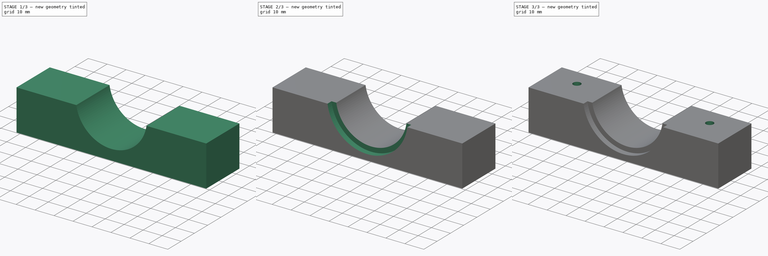
[diagram: build sequence overview — one tinted view per stage of 3, left to right]
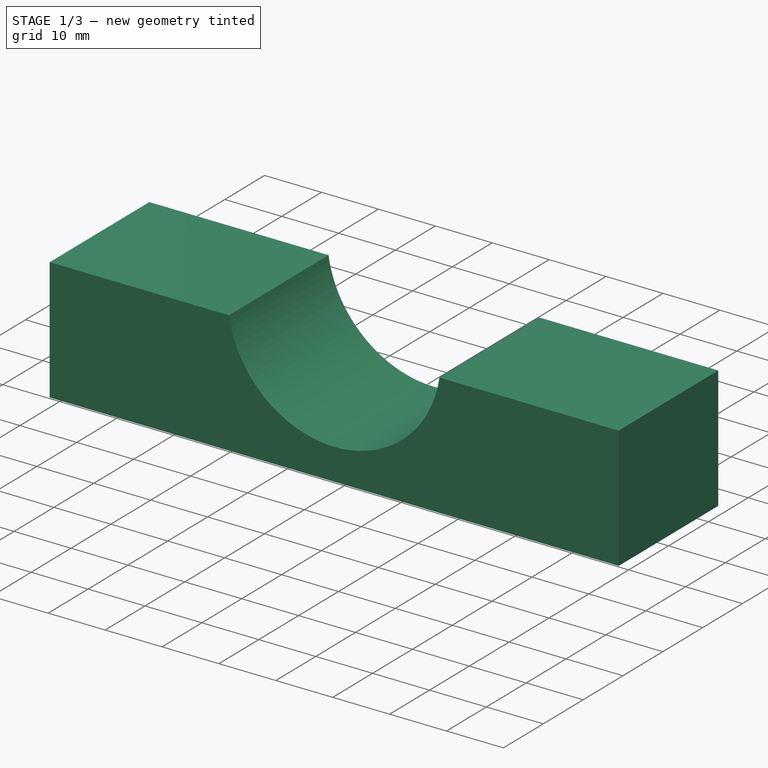
[diagram: stage 1 of 3 — iso view after this stage's code; geometry added in this stage tinted green]
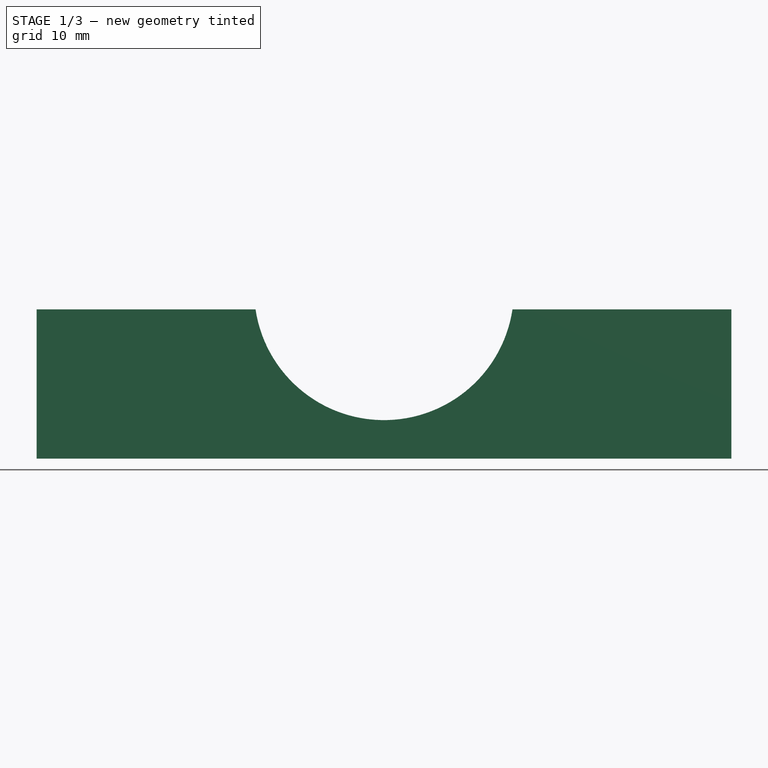
[diagram: stage 1 of 3 — front view after this stage's code; geometry added in this stage tinted green]
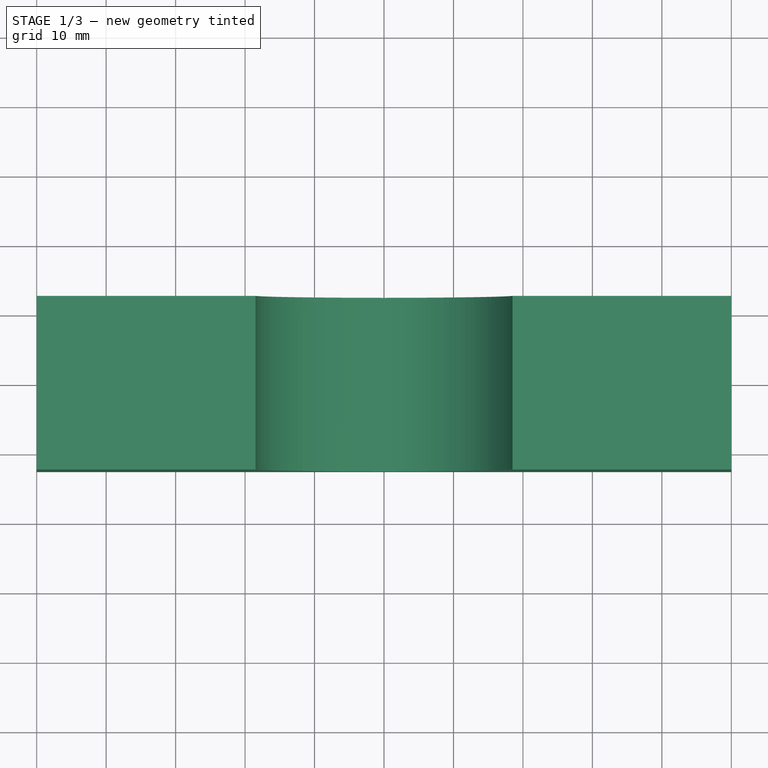
[diagram: stage 1 of 3 — top view after this stage's code; geometry added in this stage tinted green]
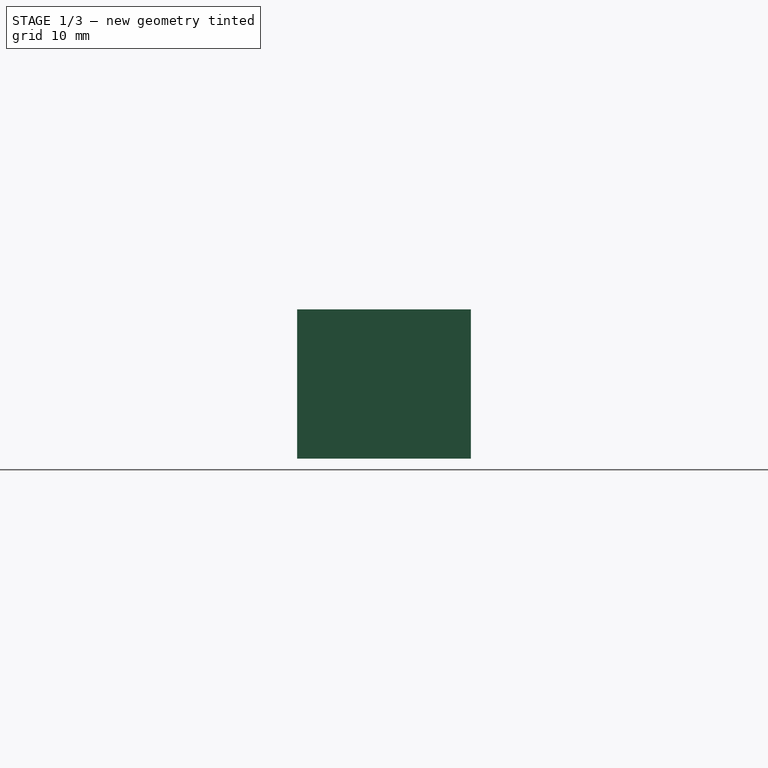
[diagram: stage 1 of 3 — right view after this stage's code; geometry added in this stage tinted green]
FCSTD DOCUMENT  (FreeCAD 0.16R)
Label: motor_holder
License: All rights reserved
LicenseURL: http://en.wikipedia.org/wiki/All_rights_reserved
objects: Sketcher::SketchObject×5, PartDesign::Pocket×4, PartDesign::Pad×1
note: 15 computed .brp shape members not serialized (recipe doc carries the construction recipe); baked Part::Feature solids carry a one-line shape summary decoded from their .brp

FEATURE [Sketcher::SketchObject] Sketch
  sketch-geometry (4):
    g0: LineSegment StartX=-50 StartY=12.5 StartZ=0 EndX=50 EndY=12.5 EndZ=0
    g1: LineSegment StartX=50 StartY=12.5 StartZ=0 EndX=50 EndY=-12.5 EndZ=0
    g2: LineSegment StartX=50 StartY=-12.5 StartZ=0 EndX=-50 EndY=-12.5 EndZ=0
    g3: LineSegment StartX=-50 StartY=-12.5 StartZ=0 EndX=-50 EndY=12.5 EndZ=0
  constraints (12):
    c: Coincident(g0,g1)
    c: Coincident(g1,g2)
    c: Coincident(g2,g3)
    c: Coincident(g3,g0)
    c: Horizontal(g0)
    c: Horizontal(g2)
    c: Vertical(g1)
    c: Vertical(g3)
    c: Symmetric(g0,g0,g-2)
    c: Symmetric(g0,g2,g-1)
    c: DistanceX(g0,g0) = 100
    c: DistanceY(g3,g3) = 25
FEATURE [PartDesign::Pad] Pad
  Length = 21.5
  Length2 = 100
  Sketch = -> Sketch
  Type = 0
FEATURE [Sketcher::SketchObject] Sketch001
  ExternalGeometry = -> [Pad]
  Placement = pos=(0,-12.5,0) rot=(1,0,0;1.5708rad)
  Support = -> Pad [Face3]
  sketch-geometry (1):
    g0: Circle CenterX=0 CenterY=24.25 CenterZ=0 NormalX=0 NormalY=0 NormalZ=1 Radius=18.7
  constraints (3):
    c: Radius(g0) = 18.7
    c: PointOnObject(g0,g-2)
    c: DistanceY(g0,g-3) = -2.75
FEATURE [PartDesign::Pocket] Pocket
  Length = 5
  Sketch = -> Sketch001
  Type = 1
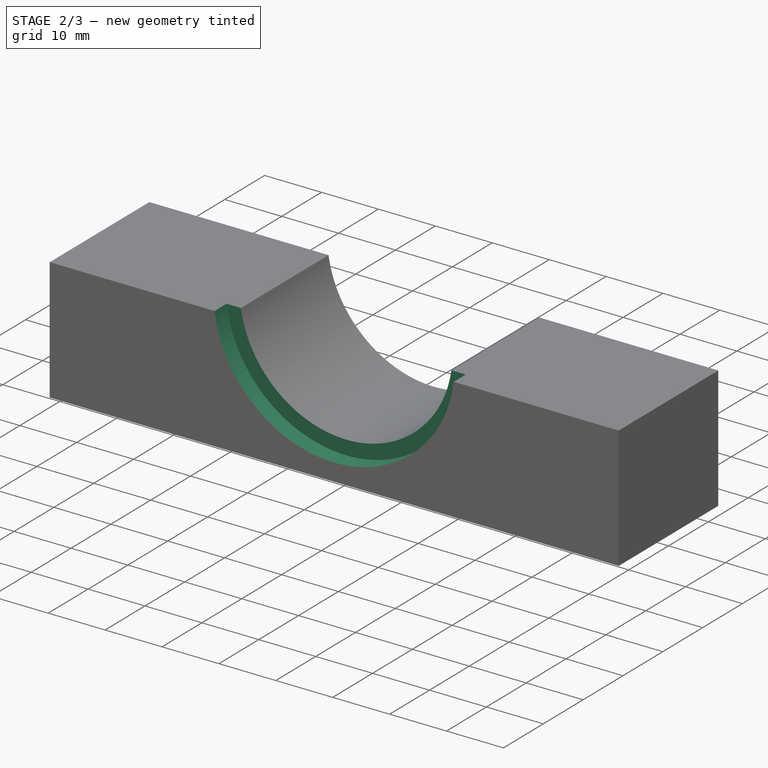
[diagram: stage 2 of 3 — iso view after this stage's code; geometry added in this stage tinted green]
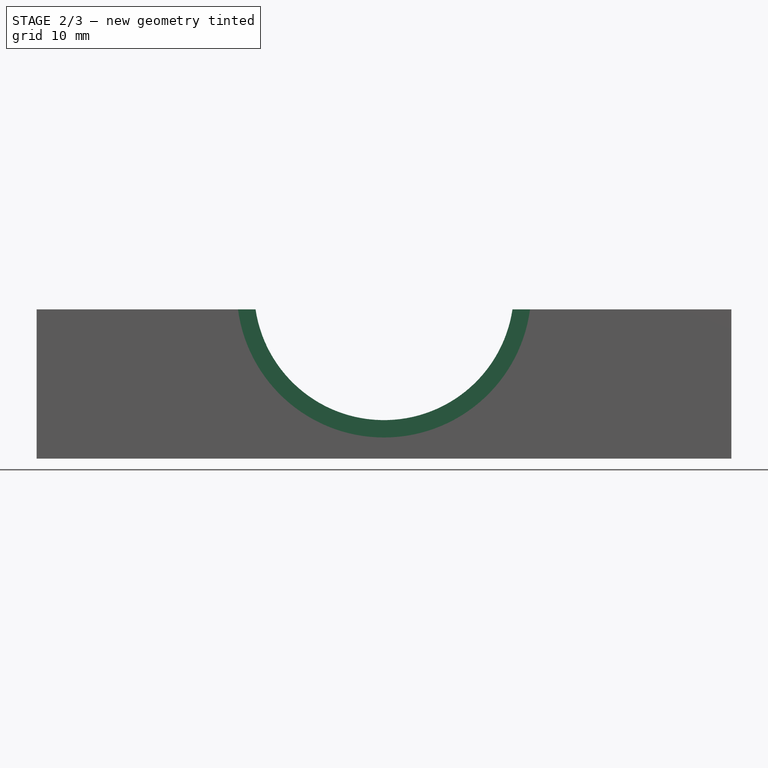
[diagram: stage 2 of 3 — front view after this stage's code; geometry added in this stage tinted green]
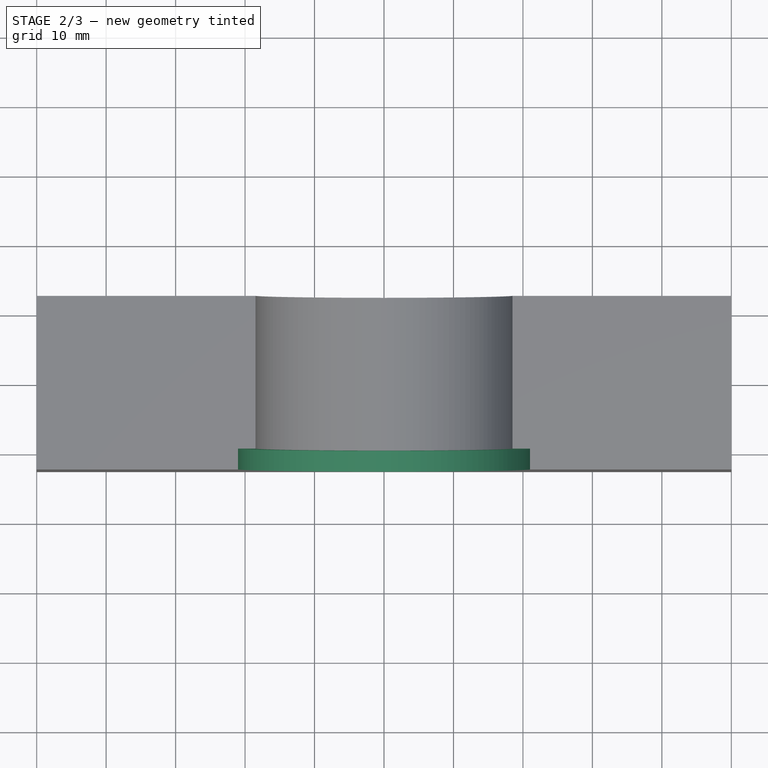
[diagram: stage 2 of 3 — top view after this stage's code; geometry added in this stage tinted green]
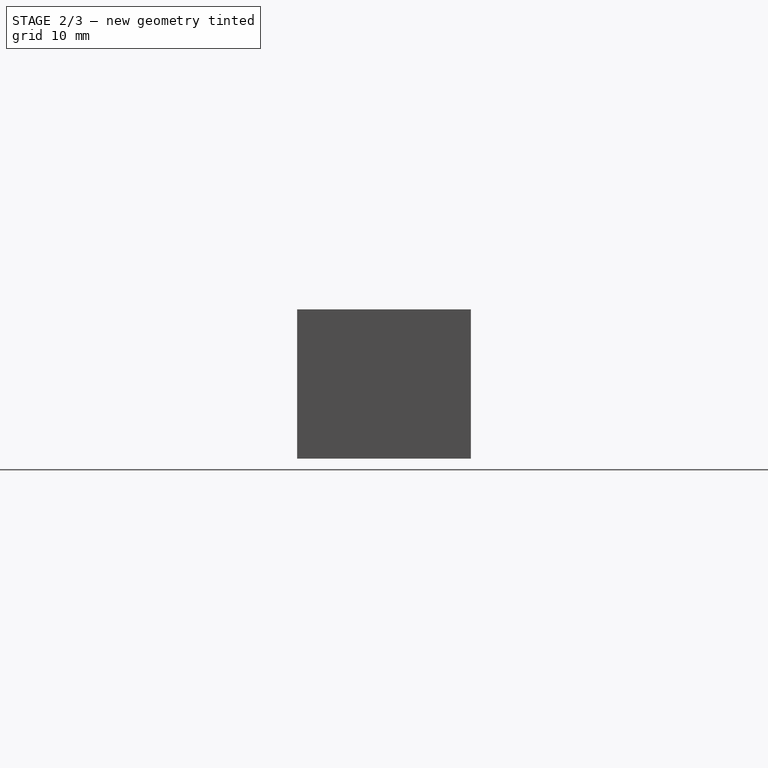
[diagram: stage 2 of 3 — right view after this stage's code; geometry added in this stage tinted green]
FEATURE [Sketcher::SketchObject] Sketch002
  ExternalGeometry = -> [Pocket]
  Placement = pos=(0,-12.5,0) rot=(1,0,0;1.5708rad)
  Support = -> Pocket [Face8]
  sketch-geometry (1):
    g0: Circle CenterX=0 CenterY=24.25 CenterZ=0 NormalX=0 NormalY=0 NormalZ=1 Radius=21.2
  constraints (2):
    c: Radius(g0) = 21.2
    c: DistanceY(g0,g-3) = -2.75
FEATURE [PartDesign::Pocket] Pocket001
  Length = 3
  Sketch = -> Sketch002
  Type = 0
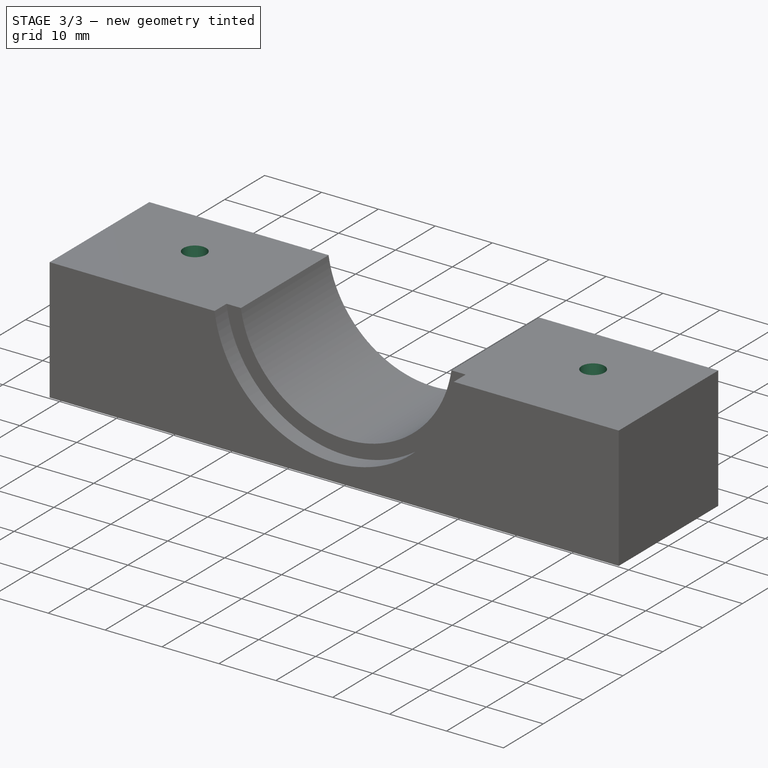
[diagram: stage 3 of 3 — iso view after this stage's code; geometry added in this stage tinted green]
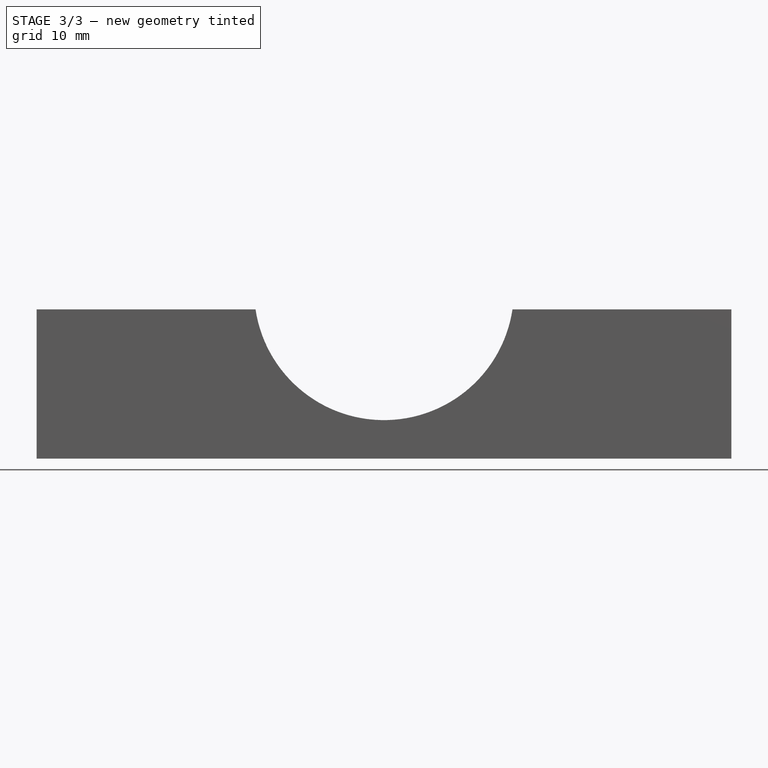
[diagram: stage 3 of 3 — front view after this stage's code; geometry added in this stage tinted green]
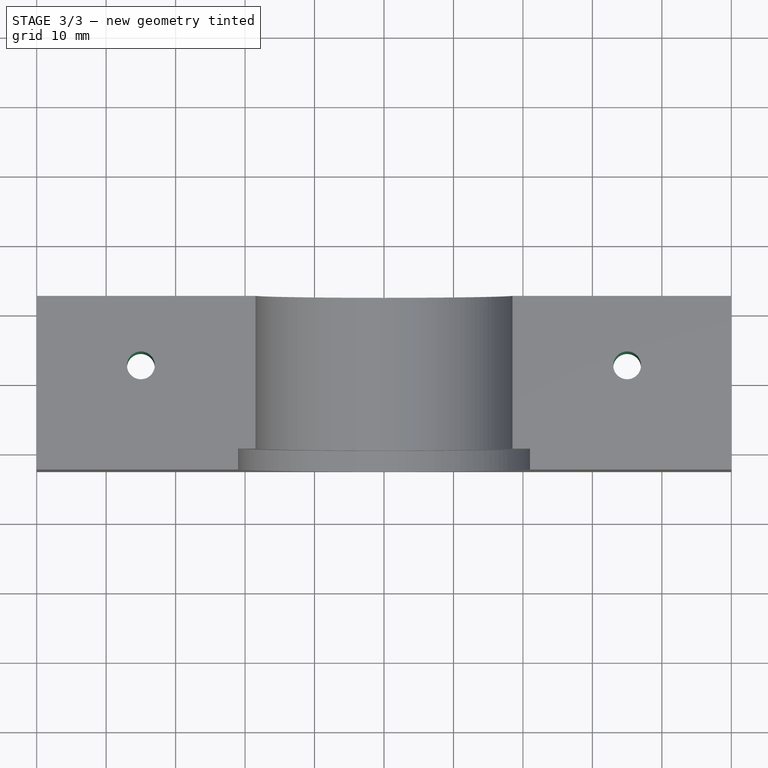
[diagram: stage 3 of 3 — top view after this stage's code; geometry added in this stage tinted green]
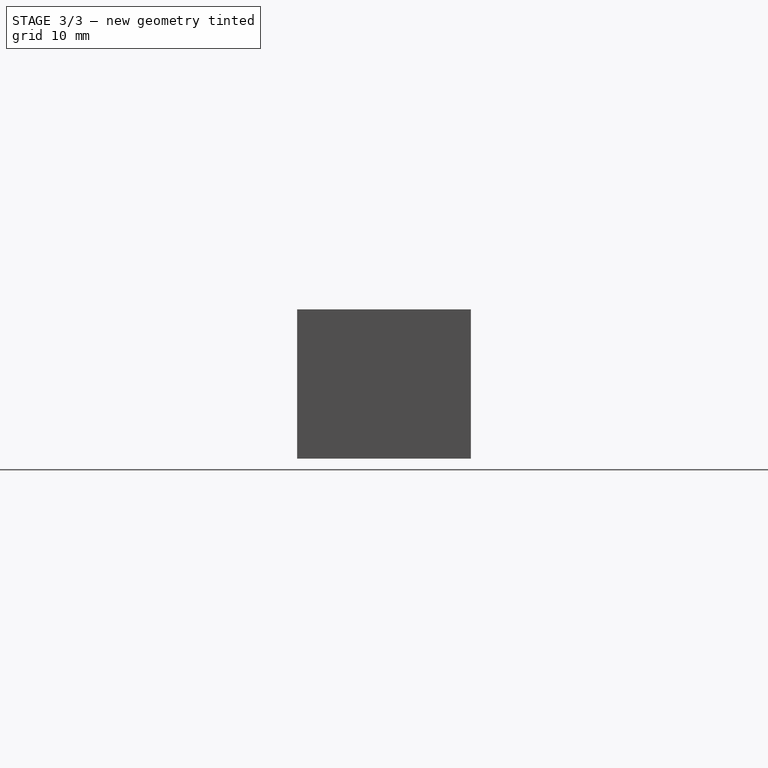
[diagram: stage 3 of 3 — right view after this stage's code; geometry added in this stage tinted green]
FEATURE [Sketcher::SketchObject] Sketch003
  ExternalGeometry = -> [Pocket001]
  Placement = pos=(0,0,0) rot=(1,0,0;3.14159rad)
  Support = -> Pocket001 [Face2]
  sketch-geometry (2):
    g0: Circle CenterX=-35 CenterY=-2.5 CenterZ=0 NormalX=0 NormalY=0 NormalZ=1 Radius=2
    g1: Circle CenterX=35 CenterY=-2.5 CenterZ=0 NormalX=0 NormalY=0 NormalZ=1 Radius=2
  constraints (6):
    c: DistanceX(g1,g-3) = 15
    c: DistanceX(g-4,g0) = 15
    c: DistanceY(g-4,g0) = 10
    c: DistanceY(g-4,g1) = 10
    c: Radius(g0) = 2
    c: Equal(g0,g1)
FEATURE [PartDesign::Pocket] Pocket002
  Length = 5
  Sketch = -> Sketch003
  Type = 1
FEATURE [Sketcher::SketchObject] Sketch004
  Placement = pos=(0,0,0) rot=(1,0,0;3.14159rad)
  Support = -> Pocket002 [Face2]
  sketch-geometry (28):
    g0: LineSegment StartX=-4.23156 StartY=5.72442 StartZ=0 EndX=-4.87712 EndY=7.39373 EndZ=0
    g1: LineSegment StartX=-4.87712 StartY=7.39373 StartZ=0 EndX=-6.64556 EndY=7.66931 EndZ=0
    g2: LineSegment StartX=-6.64556 StartY=7.66931 StartZ=0 EndX=-7.76844 EndY=6.27558 EndZ=0
    g3: LineSegment StartX=-7.76844 StartY=6.27558 StartZ=0 EndX=-7.12288 EndY=4.60627 EndZ=0
    g4: LineSegment StartX=-7.12288 StartY=4.60627 StartZ=0 EndX=-5.35444 EndY=4.33069 EndZ=0
    g5: LineSegment StartX=-5.35444 StartY=4.33069 StartZ=0 EndX=-4.23156 EndY=5.72442 EndZ=0
    g6: Circle [constr] CenterX=-6 CenterY=6 CenterZ=0 NormalX=0 NormalY=0 NormalZ=1 Radius=1.78979
    g7: LineSegment StartX=6.39322 StartY=4.25394 StartZ=0 EndX=7.70874 EndY=5.46751 EndZ=0
    g8: LineSegment StartX=7.70874 StartY=5.46751 StartZ=0 EndX=7.31552 EndY=7.21356 EndZ=0
    g9: LineSegment StartX=7.31552 StartY=7.21356 StartZ=0 EndX=5.60678 EndY=7.74606 EndZ=0
    g10: LineSegment StartX=5.60678 StartY=7.74606 StartZ=0 EndX=4.29126 EndY=6.53249 EndZ=0
    g11: LineSegment StartX=4.29126 StartY=6.53249 StartZ=0 EndX=4.68448 EndY=4.78644 EndZ=0
    g12: LineSegment StartX=4.68448 StartY=4.78644 StartZ=0 EndX=6.39322 EndY=4.25394 EndZ=0
    g13: Circle [constr] CenterX=6 CenterY=6 CenterZ=0 NormalX=0 NormalY=0 NormalZ=1 Radius=1.78979
    g14: LineSegment StartX=-5.63201 StartY=-7.75155 StartZ=0 EndX=-4.29912 EndY=-6.55709 EndZ=0
    g15: LineSegment StartX=-4.29912 StartY=-6.55709 StartZ=0 EndX=-4.66711 EndY=-4.80554 EndZ=0
    g16: LineSegment StartX=-4.66711 StartY=-4.80554 StartZ=0 EndX=-6.36799 EndY=-4.24845 EndZ=0
    g17: LineSegment StartX=-6.36799 StartY=-4.24845 StartZ=0 EndX=-7.70088 EndY=-5.44291 EndZ=0
    g18: LineSegment StartX=-7.70088 StartY=-5.44291 StartZ=0 EndX=-7.33289 EndY=-7.19446 EndZ=0
    g19: LineSegment StartX=-7.33289 StartY=-7.19446 StartZ=0 EndX=-5.63201 EndY=-7.75155 EndZ=0
    g20: Circle [constr] CenterX=-6 CenterY=-6 CenterZ=0 NormalX=0 NormalY=0 NormalZ=1 Radius=1.78979
    g21: LineSegment StartX=6.90514 StartY=-7.54404 StartZ=0 EndX=7.78975 EndY=-5.98814 EndZ=0
    g22: LineSegment StartX=7.78975 StartY=-5.98814 StartZ=0 EndX=6.8846 EndY=-4.4441 EndZ=0
    g23: LineSegment StartX=6.8846 StartY=-4.4441 StartZ=0 EndX=5.09486 EndY=-4.45596 EndZ=0
    g24: LineSegment StartX=5.09486 StartY=-4.45596 StartZ=0 EndX=4.21025 EndY=-6.01186 EndZ=0
    g25: LineSegment StartX=4.21025 StartY=-6.01186 StartZ=0 EndX=5.1154 EndY=-7.5559 EndZ=0
    g26: LineSegment StartX=5.1154 StartY=-7.5559 StartZ=0 EndX=6.90514 EndY=-7.54404 EndZ=0
    g27: Circle [constr] CenterX=6 CenterY=-6 CenterZ=0 NormalX=0 NormalY=0 NormalZ=1 Radius=1.78979
  constraints (61):
    c: Coincident(g0,g1)
    c: Coincident(g1,g2)
    c: Coincident(g2,g3)
    c: Coincident(g3,g4)
    c: Coincident(g4,g5)
    c: Coincident(g5,g0)
    c: Equal(g0, g1-g5) x5
    c: PointOnObject(g0,g6)
    c: PointOnObject(g1,g6)
    c: PointOnObject(g2,g6)
    c: PointOnObject(g3,g6)
    c: PointOnObject(g4,g6)
    c: PointOnObject(g5,g6)
    c: Coincident(g7,g8)
    c: Coincident(g8,g9)
    c: Coincident(g9,g10)
    c: Coincident(g10,g11)
    c: Coincident(g11,g12)
    c: Coincident(g12,g7)
    c: Equal(g7, g8-g12) x5
    c: PointOnObject(g7,g13)
    c: PointOnObject(g8,g13)
    c: PointOnObject(g9,g13)
    c: PointOnObject(g10,g13)
    c: PointOnObject(g11,g13)
    c: PointOnObject(g12,g13)
    c: Coincident(g14,g15)
    c: Coincident(g15,g16)
    c: Coincident(g16,g17)
    c: Coincident(g17,g18)
    c: Coincident(g18,g19)
    c: Coincident(g19,g14)
    c: Equal(g14, g15-g19) x5
    c: PointOnObject(g14,g20)
    c: PointOnObject(g15,g20)
    c: PointOnObject(g16,g20)
    c: PointOnObject(g17,g20)
    c: PointOnObject(g18,g20)
    c: PointOnObject(g19,g20)
    c: Coincident(g21,g22)
    c: Coincident(g22,g23)
    c: Coincident(g23,g24)
    c: Coincident(g24,g25)
    c: Coincident(g25,g26)
    c: Coincident(g26,g21)
    c: Equal(g21, g22-g26) x5
    c: PointOnObject(g21,g27)
    c: PointOnObject(g22,g27)
    c: PointOnObject(g23,g27)
    c: PointOnObject(g24,g27)
    c: PointOnObject(g25,g27)
    c: PointOnObject(g26,g27)
    c: Symmetric(g20,g27,g-2)
    c: Symmetric(g20,g6,g-1)
    c: Symmetric(g6,g13,g-2)
    c: DistanceX(g6,g13) = 12
    c: DistanceY(g20,g6) = 12
    c: Distance(g11,g9) = 3.1
    c: Equal(g13,g27)
    c: Equal(g27,g20)
    c: Equal(g20,g6)
FEATURE [PartDesign::Pocket] Pocket003
  Length = 6
  Sketch = -> Sketch004
  Type = 0
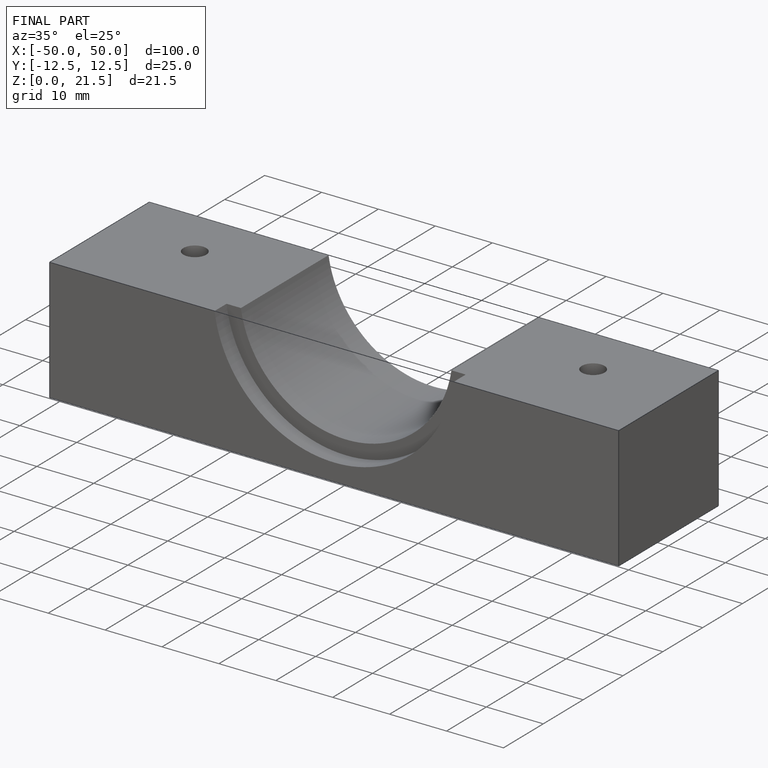
[diagram: finished part — iso view with bounding-box wireframe]
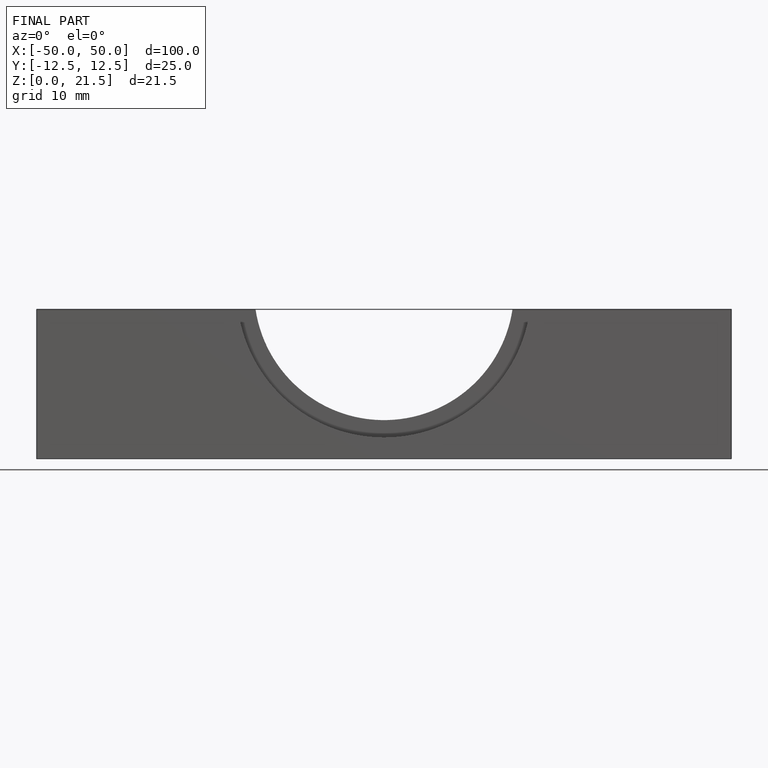
[diagram: finished part — front view with bounding-box wireframe]
